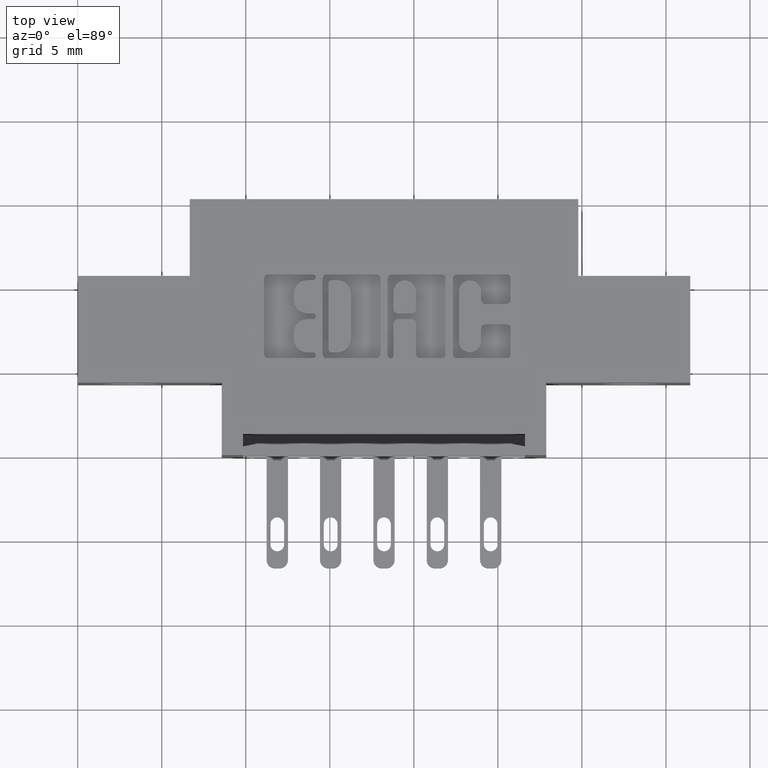
[diagram: clean part render]
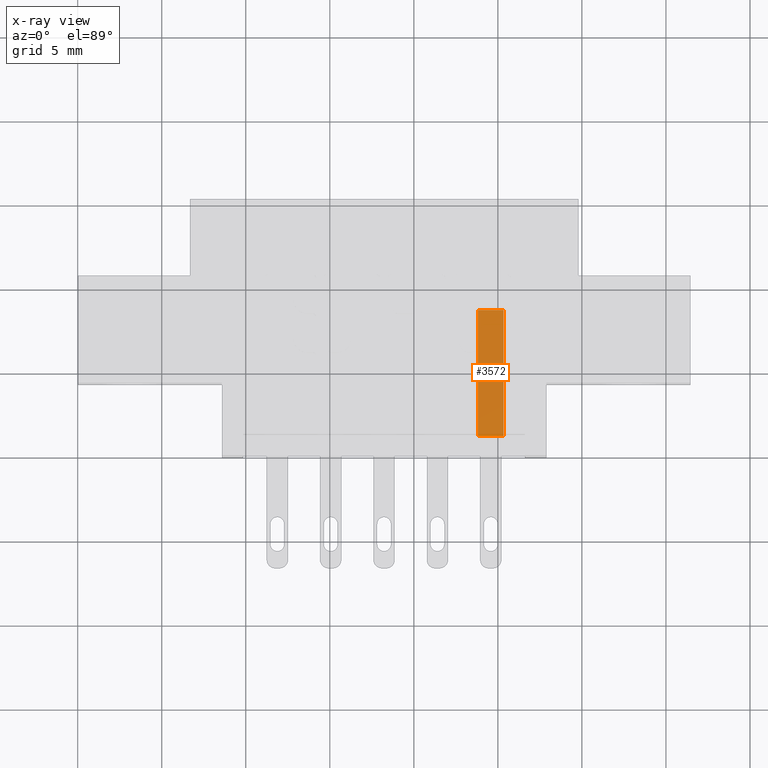
[diagram: x-ray — body ghosted, one internal face saturated and labeled with its STEP entity id]
A machine part, top view, then the same camera in x-ray: the body is ghosted and one INTERNAL B-rep face — a face not visible from any outside direction — is saturated and labeled: STEP entity #3572.
In plain terms, the highlighted planar face has unit normal (0, 0, 1).
Its self-contained STEP definition (entity closure, byte-faithful):
#30 = ORIENTED_EDGE ( 'NONE', *, *, #2078, .T. ) ;
#524 = EDGE_CURVE ( 'NONE', #7888, #4553, #600, .T. ) ;
#565 = CARTESIAN_POINT ( 'NONE',  ( 0.9374999999999998890, 0.3450000000000001399, -0.2975000000000001532 ) ) ;
#600 = LINE ( 'NONE', #3479, #2151 ) ;
#688 = CARTESIAN_POINT ( 'NONE',  ( 0.9974999999999999423, 0.3450000000000001399, -0.2975000000000001532 ) ) ;
#827 = DIRECTION ( 'NONE',  ( 0.0000000000000000000, 0.0000000000000000000, 1.000000000000000000 ) ) ;
#1875 = LINE ( 'NONE', #8366, #3393 ) ;
#2025 = AXIS2_PLACEMENT_3D ( 'NONE', #6706, #827, #6093 ) ;
#2078 = EDGE_CURVE ( 'NONE', #4553, #7149, #1875, .T. ) ;
#2151 = VECTOR ( 'NONE', #6581, 39.37007874015748143 ) ;
#2336 = ORIENTED_EDGE ( 'NONE', *, *, #8118, .T. ) ;
#2663 = LINE ( 'NONE', #5564, #7882 ) ;
#2687 = LINE ( 'NONE', #565, #3424 ) ;
#3089 = PLANE ( 'NONE',  #2025 ) ;
#3258 = DIRECTION ( 'NONE',  ( -1.000000000000000000, 0.0000000000000000000, 0.0000000000000000000 ) ) ;
#3393 = VECTOR ( 'NONE', #3258, 39.37007874015748143 ) ;
#3424 = VECTOR ( 'NONE', #4923, 39.37007874015748143 ) ;
#3479 = CARTESIAN_POINT ( 'NONE',  ( 0.9974999999999999423, 0.3450000000000001399, -0.2975000000000001532 ) ) ;
#3572 = ADVANCED_FACE ( 'NONE', ( #8772 ), #3089, .F. ) ;
#4553 = VERTEX_POINT ( 'NONE', #9250 ) ;
#4923 = DIRECTION ( 'NONE',  ( 0.0000000000000000000, -1.000000000000000000, 0.0000000000000000000 ) ) ;
#5098 = ORIENTED_EDGE ( 'NONE', *, *, #524, .T. ) ;
#5564 = CARTESIAN_POINT ( 'NONE',  ( 0.9374999999999998890, 0.3450000000000001399, -0.2975000000000001532 ) ) ;
#5962 = EDGE_CURVE ( 'NONE', #7816, #7149, #2687, .T. ) ;
#6093 = DIRECTION ( 'NONE',  ( 1.000000000000000000, 0.0000000000000000000, -0.0000000000000000000 ) ) ;
#6186 = EDGE_LOOP ( 'NONE', ( #30, #7174, #2336, #5098 ) ) ;
#6434 = CARTESIAN_POINT ( 'NONE',  ( 0.9374999999999998890, 0.3450000000000001399, -0.2975000000000001532 ) ) ;
#6581 = DIRECTION ( 'NONE',  ( 0.0000000000000000000, -1.000000000000000000, 0.0000000000000000000 ) ) ;
#6706 = CARTESIAN_POINT ( 'NONE',  ( 0.9374999999999998890, 0.3450000000000001399, -0.2975000000000001532 ) ) ;
#7149 = VERTEX_POINT ( 'NONE', #8327 ) ;
#7174 = ORIENTED_EDGE ( 'NONE', *, *, #5962, .F. ) ;
#7731 = DIRECTION ( 'NONE',  ( 1.000000000000000000, -0.0000000000000000000, -0.0000000000000000000 ) ) ;
#7816 = VERTEX_POINT ( 'NONE', #6434 ) ;
#7882 = VECTOR ( 'NONE', #7731, 39.37007874015748143 ) ;
#7888 = VERTEX_POINT ( 'NONE', #688 ) ;
#8118 = EDGE_CURVE ( 'NONE', #7816, #7888, #2663, .T. ) ;
#8327 = CARTESIAN_POINT ( 'NONE',  ( 0.9374999999999998890, 0.05000000000000000971, -0.2975000000000001532 ) ) ;
#8366 = CARTESIAN_POINT ( 'NONE',  ( 1.047500000000000320, 0.05000000000000000278, -0.2975000000000001532 ) ) ;
#8772 = FACE_OUTER_BOUND ( 'NONE', #6186, .T. ) ;
#9250 = CARTESIAN_POINT ( 'NONE',  ( 0.9974999999999999423, 0.05000000000000000971, -0.2975000000000001532 ) ) ;